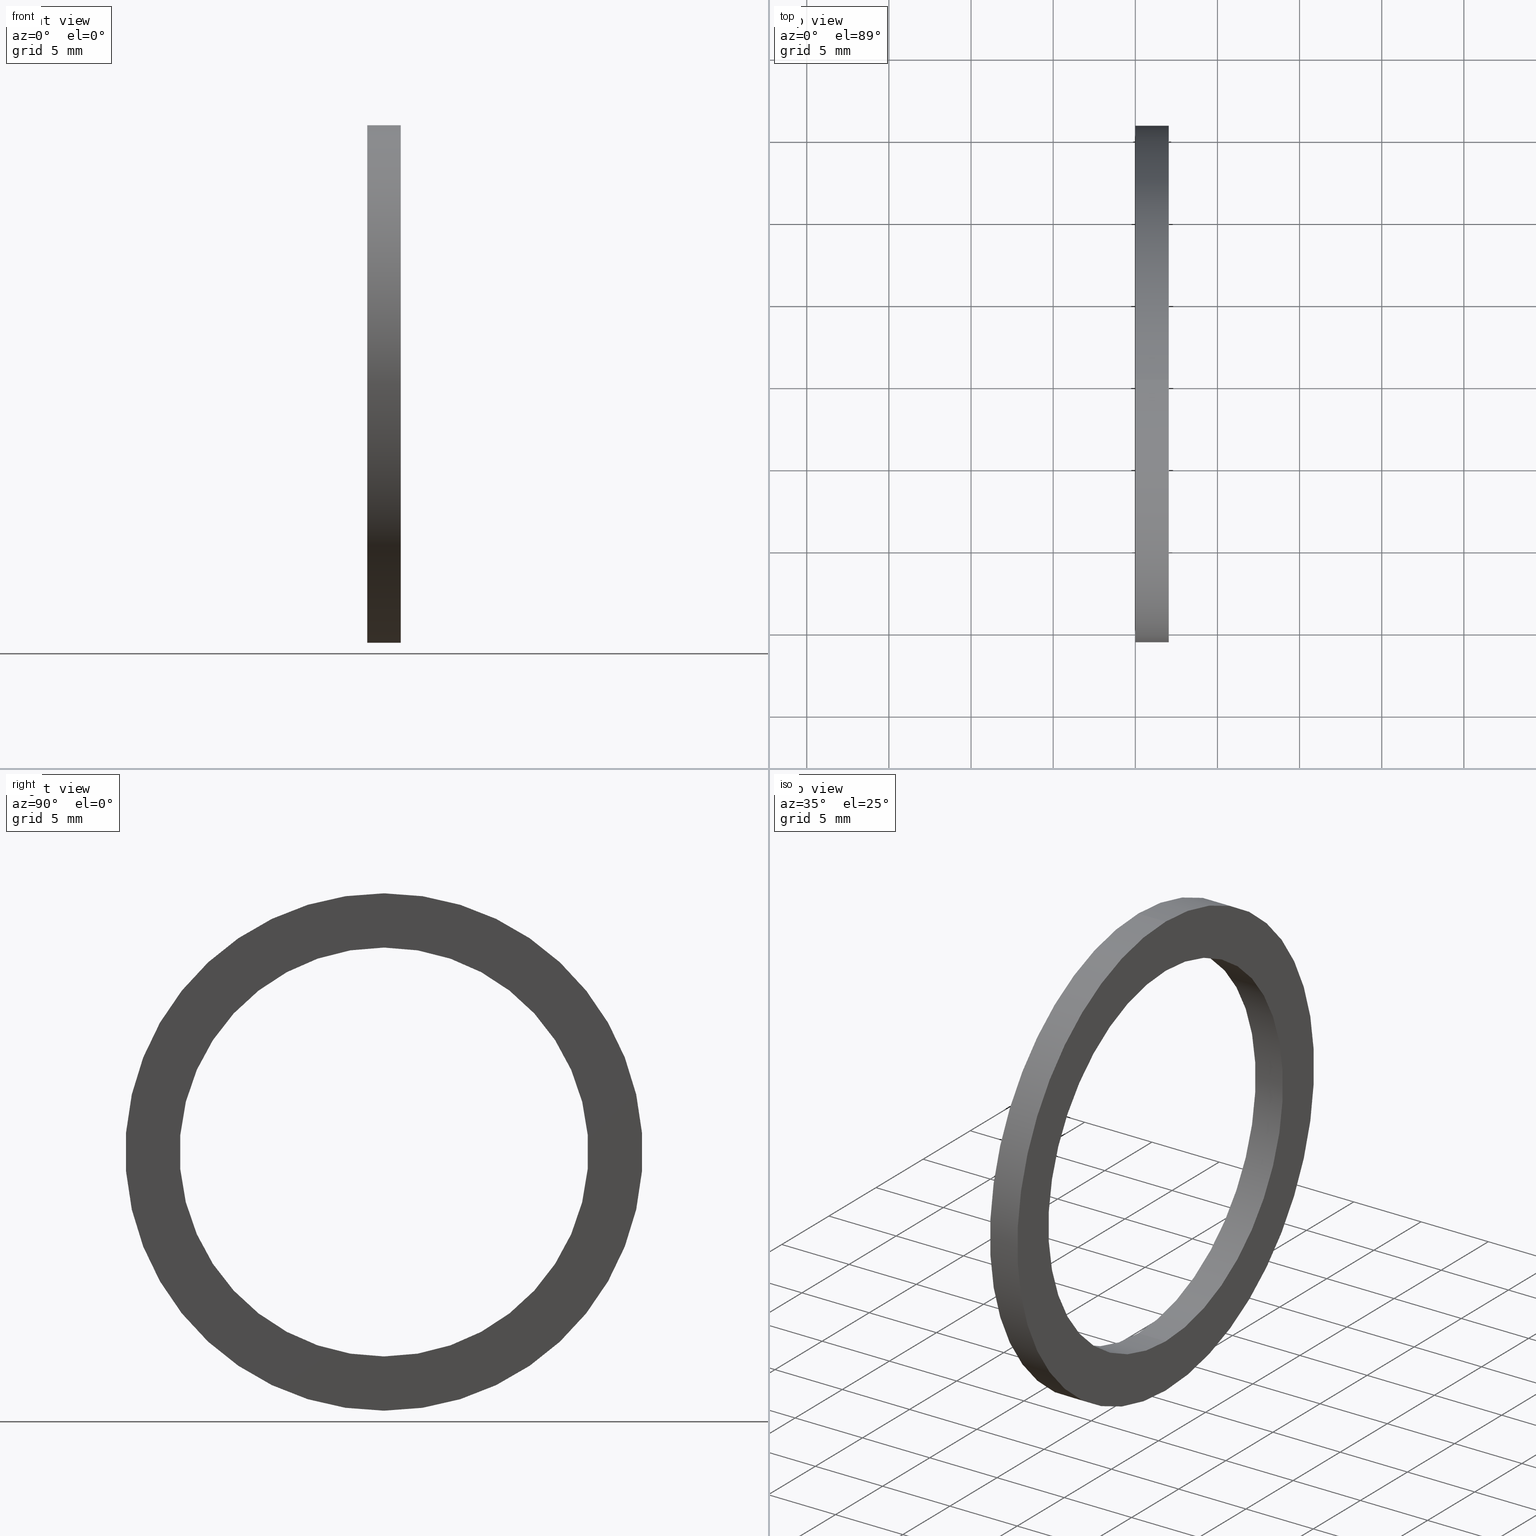
[diagram: canonical four-view strip — front | top / right | iso, engineering-drawing reading convention]
A machine part, canonical four-view strip (front | top / right | iso — engineering-drawing reading convention). The complete STEP part file that produces these views, byte-faithful:
ISO-10303-21;
HEADER;
FILE_DESCRIPTION (( 'STEP AP203' ),
    '1' );
FILE_NAME ('MS-25-NY.STEP',
    '2008-03-29T07:50:07',
    ( '' ),
    ( '' ),
    'SwSTEP 2.0',
    'SolidWorks 2007',
    '' );
FILE_SCHEMA (( 'CONFIG_CONTROL_DESIGN' ));
ENDSEC;

DATA;
#1 = ORIENTED_EDGE ( 'NONE', *, *, #12, .T. ) ;
#2 = VERTEX_POINT ( 'NONE', #59 ) ;
#3 = EDGE_CURVE ( 'NONE', #4, #2, #68, .T. ) ;
#4 = VERTEX_POINT ( 'NONE', #65 ) ;
#5 = EDGE_LOOP ( 'NONE', ( #7, #1, #14, #18 ) ) ;
#6 = ADVANCED_FACE ( 'NONE', ( #76 ), #69, .T. ) ;
#7 = ORIENTED_EDGE ( 'NONE', *, *, #3, .T. ) ;
#8 = VERTEX_POINT ( 'NONE', #84 ) ;
#9 = ORIENTED_EDGE ( 'NONE', *, *, #10, .F. ) ;
#10 = EDGE_CURVE ( 'NONE', #53, #8, #83, .T. ) ;
#11 = EDGE_LOOP ( 'NONE', ( #46, #48 ) ) ;
#12 = EDGE_CURVE ( 'NONE', #2, #13, #87, .T. ) ;
#13 = VERTEX_POINT ( 'NONE', #94 ) ;
#14 = ORIENTED_EDGE ( 'NONE', *, *, #15, .F. ) ;
#15 = EDGE_CURVE ( 'NONE', #16, #13, #91, .T. ) ;
#16 = VERTEX_POINT ( 'NONE', #88 ) ;
#17 = ORIENTED_EDGE ( 'NONE', *, *, #43, .F. ) ;
#18 = ORIENTED_EDGE ( 'NONE', *, *, #19, .F. ) ;
#19 = EDGE_CURVE ( 'NONE', #4, #16, #98, .T. ) ;
#20 = ADVANCED_FACE ( 'NONE', ( #101, #100 ), #99, .T. ) ;
#21 = EDGE_LOOP ( 'NONE', ( #22, #23 ) ) ;
#22 = ORIENTED_EDGE ( 'NONE', *, *, #15, .T. ) ;
#23 = ORIENTED_EDGE ( 'NONE', *, *, #26, .T. ) ;
#24 = ORIENTED_EDGE ( 'NONE', *, *, #10, .T. ) ;
#25 = CLOSED_SHELL ( 'NONE', ( #61, #6, #20, #49, #35, #34 ) ) ;
#26 = EDGE_CURVE ( 'NONE', #13, #16, #132, .T. ) ;
#27 = ORIENTED_EDGE ( 'NONE', *, *, #47, .T. ) ;
#28 = EDGE_LOOP ( 'NONE', ( #29, #17, #24, #27 ) ) ;
#29 = ORIENTED_EDGE ( 'NONE', *, *, #36, .F. ) ;
#30 = ORIENTED_EDGE ( 'NONE', *, *, #26, .F. ) ;
#31 = EDGE_CURVE ( 'NONE', #38, #8, #128, .T. ) ;
#32 = EDGE_LOOP ( 'NONE', ( #41, #42 ) ) ;
#33 = ORIENTED_EDGE ( 'NONE', *, *, #12, .F. ) ;
#34 = ADVANCED_FACE ( 'NONE', ( #124 ), #123, .F. ) ;
#35 = ADVANCED_FACE ( 'NONE', ( #122, #117 ), #116, .T. ) ;
#36 = EDGE_CURVE ( 'NONE', #62, #38, #111, .T. ) ;
#37 = ORIENTED_EDGE ( 'NONE', *, *, #36, .T. ) ;
#38 = VERTEX_POINT ( 'NONE', #107 ) ;
#39 = EDGE_CURVE ( 'NONE', #2, #4, #106, .T. ) ;
#40 = EDGE_LOOP ( 'NONE', ( #33, #52, #45, #30 ) ) ;
#41 = ORIENTED_EDGE ( 'NONE', *, *, #3, .F. ) ;
#42 = ORIENTED_EDGE ( 'NONE', *, *, #39, .F. ) ;
#43 = EDGE_CURVE ( 'NONE', #53, #62, #71, .T. ) ;
#44 = ORIENTED_EDGE ( 'NONE', *, *, #57, .T. ) ;
#45 = ORIENTED_EDGE ( 'NONE', *, *, #19, .T. ) ;
#46 = ORIENTED_EDGE ( 'NONE', *, *, #47, .F. ) ;
#47 = EDGE_CURVE ( 'NONE', #8, #38, #149, .T. ) ;
#48 = ORIENTED_EDGE ( 'NONE', *, *, #31, .F. ) ;
#49 = ADVANCED_FACE ( 'NONE', ( #165 ), #145, .T. ) ;
#50 = EDGE_LOOP ( 'NONE', ( #51, #44 ) ) ;
#51 = ORIENTED_EDGE ( 'NONE', *, *, #43, .T. ) ;
#52 = ORIENTED_EDGE ( 'NONE', *, *, #39, .T. ) ;
#53 = VERTEX_POINT ( 'NONE', #146 ) ;
#54 = ORIENTED_EDGE ( 'NONE', *, *, #31, .T. ) ;
#55 = EDGE_LOOP ( 'NONE', ( #63, #37, #54, #9 ) ) ;
#56 = CARTESIAN_POINT ( 'NONE',  ( 0.07999999999999996000, 0.0000000000000000000, 0.0000000000000000000 ) ) ;
#57 = EDGE_CURVE ( 'NONE', #62, #53, #177, .T. ) ;
#58 = DIRECTION ( 'NONE',  ( -1.000000000000000000, 0.0000000000000000000, 0.0000000000000000000 ) ) ;
#59 = CARTESIAN_POINT ( 'NONE',  ( 0.07999999999999996000, 7.592810154713589100E-017, -0.6200000000000000000 ) ) ;
#60 = MANIFOLD_SOLID_BREP ( 'NONE', #25 ) ;
#61 = ADVANCED_FACE ( 'NONE', ( #178 ), #170, .F. ) ;
#62 = VERTEX_POINT ( 'NONE', #171 ) ;
#63 = ORIENTED_EDGE ( 'NONE', *, *, #57, .F. ) ;
#64 = DIRECTION ( 'NONE',  ( 0.0000000000000000000, 0.0000000000000000000, 1.000000000000000000 ) ) ;
#65 = CARTESIAN_POINT ( 'NONE',  ( 0.07999999999999996000, 0.0000000000000000000, 0.6200000000000000000 ) ) ;
#66 = DIRECTION ( 'NONE',  ( -1.000000000000000000, 0.0000000000000000000, 0.0000000000000000000 ) ) ;
#67 = CARTESIAN_POINT ( 'NONE',  ( -1.721125226614714300, 0.0000000000000000000, 0.0000000000000000000 ) ) ;
#68 = CIRCLE ( 'NONE', #77, 0.6200000000000000000 ) ;
#69 = CYLINDRICAL_SURFACE ( 'NONE', #74, 0.6200000000000000000 ) ;
#70 = AXIS2_PLACEMENT_3D ( 'NONE', #56, #78, #79 ) ;
#71 = CIRCLE ( 'NONE', #70, 0.4899999999999999900 ) ;
#72 = DIRECTION ( 'NONE',  ( 0.0000000000000000000, 0.0000000000000000000, 1.000000000000000000 ) ) ;
#73 = DIRECTION ( 'NONE',  ( -1.000000000000000000, 0.0000000000000000000, 0.0000000000000000000 ) ) ;
#74 = AXIS2_PLACEMENT_3D ( 'NONE', #67, #73, #72 ) ;
#75 = CARTESIAN_POINT ( 'NONE',  ( 0.07999999999999996000, 0.0000000000000000000, 0.0000000000000000000 ) ) ;
#76 = FACE_OUTER_BOUND ( 'NONE', #5, .T. ) ;
#77 = AXIS2_PLACEMENT_3D ( 'NONE', #75, #66, #64 ) ;
#78 = DIRECTION ( 'NONE',  ( -1.000000000000000000, 0.0000000000000000000, 0.0000000000000000000 ) ) ;
#79 = DIRECTION ( 'NONE',  ( 0.0000000000000000000, 0.0000000000000000000, 1.000000000000000000 ) ) ;
#80 = DIRECTION ( 'NONE',  ( -1.000000000000000000, 0.0000000000000000000, 0.0000000000000000000 ) ) ;
#81 = VECTOR ( 'NONE', #80, 39.37007874015748100 ) ;
#82 = CARTESIAN_POINT ( 'NONE',  ( -1.721125226614714300, 0.0000000000000000000, 0.4899999999999999900 ) ) ;
#83 = LINE ( 'NONE', #82, #81 ) ;
#84 = CARTESIAN_POINT ( 'NONE',  ( 0.0000000000000000000, 0.0000000000000000000, 0.4899999999999999900 ) ) ;
#85 = VECTOR ( 'NONE', #58, 39.37007874015748100 ) ;
#86 = CARTESIAN_POINT ( 'NONE',  ( -1.721125226614714300, 7.592810154713589100E-017, -0.6200000000000000000 ) ) ;
#87 = LINE ( 'NONE', #86, #85 ) ;
#88 = CARTESIAN_POINT ( 'NONE',  ( 0.0000000000000000000, 0.0000000000000000000, 0.6200000000000000000 ) ) ;
#89 = CARTESIAN_POINT ( 'NONE',  ( 0.0000000000000000000, 0.0000000000000000000, 0.0000000000000000000 ) ) ;
#90 = AXIS2_PLACEMENT_3D ( 'NONE', #89, #93, #92 ) ;
#91 = CIRCLE ( 'NONE', #90, 0.6200000000000000000 ) ;
#92 = DIRECTION ( 'NONE',  ( 0.0000000000000000000, 0.0000000000000000000, 1.000000000000000000 ) ) ;
#93 = DIRECTION ( 'NONE',  ( -1.000000000000000000, 0.0000000000000000000, 0.0000000000000000000 ) ) ;
#94 = CARTESIAN_POINT ( 'NONE',  ( 0.0000000000000000000, 7.592810154713589100E-017, -0.6200000000000000000 ) ) ;
#95 = DIRECTION ( 'NONE',  ( -1.000000000000000000, 0.0000000000000000000, 0.0000000000000000000 ) ) ;
#96 = VECTOR ( 'NONE', #95, 39.37007874015748100 ) ;
#97 = CARTESIAN_POINT ( 'NONE',  ( -1.721125226614714300, 0.0000000000000000000, 0.6200000000000000000 ) ) ;
#98 = LINE ( 'NONE', #97, #96 ) ;
#99 = PLANE ( 'NONE',  #137 ) ;
#100 = FACE_BOUND ( 'NONE', #11, .T. ) ;
#101 = FACE_OUTER_BOUND ( 'NONE', #21, .T. ) ;
#102 = DIRECTION ( 'NONE',  ( 0.0000000000000000000, 0.0000000000000000000, 1.000000000000000000 ) ) ;
#103 = DIRECTION ( 'NONE',  ( -1.000000000000000000, 0.0000000000000000000, 0.0000000000000000000 ) ) ;
#104 = CARTESIAN_POINT ( 'NONE',  ( 0.07999999999999996000, 0.0000000000000000000, 0.0000000000000000000 ) ) ;
#105 = AXIS2_PLACEMENT_3D ( 'NONE', #104, #103, #102 ) ;
#106 = CIRCLE ( 'NONE', #105, 0.6200000000000000000 ) ;
#107 = CARTESIAN_POINT ( 'NONE',  ( 0.0000000000000000000, 6.000769315822029800E-017, -0.4899999999999999900 ) ) ;
#108 = DIRECTION ( 'NONE',  ( -1.000000000000000000, 0.0000000000000000000, 0.0000000000000000000 ) ) ;
#109 = VECTOR ( 'NONE', #108, 39.37007874015748100 ) ;
#110 = CARTESIAN_POINT ( 'NONE',  ( -1.721125226614714300, 6.000769315822029800E-017, -0.4899999999999999900 ) ) ;
#111 = LINE ( 'NONE', #110, #109 ) ;
#112 = DIRECTION ( 'NONE',  ( 0.0000000000000000000, 0.0000000000000000000, -1.000000000000000000 ) ) ;
#113 = DIRECTION ( 'NONE',  ( 1.000000000000000000, 0.0000000000000000000, 0.0000000000000000000 ) ) ;
#114 = CARTESIAN_POINT ( 'NONE',  ( 0.08000000000000002900, -0.4899999999999999900, 0.0000000000000000000 ) ) ;
#115 = AXIS2_PLACEMENT_3D ( 'NONE', #114, #113, #112 ) ;
#116 = PLANE ( 'NONE',  #115 ) ;
#117 = FACE_OUTER_BOUND ( 'NONE', #32, .T. ) ;
#118 = DIRECTION ( 'NONE',  ( 0.0000000000000000000, 0.0000000000000000000, 1.000000000000000000 ) ) ;
#119 = DIRECTION ( 'NONE',  ( -1.000000000000000000, 0.0000000000000000000, 0.0000000000000000000 ) ) ;
#120 = CARTESIAN_POINT ( 'NONE',  ( -1.721125226614714300, 0.0000000000000000000, 0.0000000000000000000 ) ) ;
#121 = AXIS2_PLACEMENT_3D ( 'NONE', #120, #119, #118 ) ;
#122 = FACE_BOUND ( 'NONE', #50, .T. ) ;
#123 = CYLINDRICAL_SURFACE ( 'NONE', #121, 0.4899999999999999900 ) ;
#124 = FACE_OUTER_BOUND ( 'NONE', #28, .T. ) ;
#125 = DIRECTION ( 'NONE',  ( 0.0000000000000000000, 0.0000000000000000000, 1.000000000000000000 ) ) ;
#126 = DIRECTION ( 'NONE',  ( -1.000000000000000000, 0.0000000000000000000, 0.0000000000000000000 ) ) ;
#127 = AXIS2_PLACEMENT_3D ( 'NONE', #133, #126, #125 ) ;
#128 = CIRCLE ( 'NONE', #127, 0.4899999999999999900 ) ;
#129 = DIRECTION ( 'NONE',  ( 0.0000000000000000000, 0.0000000000000000000, 1.000000000000000000 ) ) ;
#130 = DIRECTION ( 'NONE',  ( -1.000000000000000000, 0.0000000000000000000, 0.0000000000000000000 ) ) ;
#131 = AXIS2_PLACEMENT_3D ( 'NONE', #138, #130, #129 ) ;
#132 = CIRCLE ( 'NONE', #131, 0.6200000000000000000 ) ;
#133 = CARTESIAN_POINT ( 'NONE',  ( 0.0000000000000000000, 0.0000000000000000000, 0.0000000000000000000 ) ) ;
#134 = DIRECTION ( 'NONE',  ( 0.0000000000000000000, 0.0000000000000000000, 1.000000000000000000 ) ) ;
#135 = DIRECTION ( 'NONE',  ( -1.000000000000000000, 0.0000000000000000000, 0.0000000000000000000 ) ) ;
#136 = CARTESIAN_POINT ( 'NONE',  ( 1.959370166115802700E-017, -0.4899999999999999900, 0.0000000000000000000 ) ) ;
#137 = AXIS2_PLACEMENT_3D ( 'NONE', #136, #135, #134 ) ;
#138 = CARTESIAN_POINT ( 'NONE',  ( 0.0000000000000000000, 0.0000000000000000000, 0.0000000000000000000 ) ) ;
#139 = PERSON ( 'UNSPECIFIED', 'UNSPECIFIED', 'UNSPECIFIED', ('UNSPECIFIED'), ('UNSPECIFIED'), ('UNSPECIFIED') ) ;
#140 = PRODUCT ( 'MS-25-NY', 'MS-25-NY', '', ( #141 ) ) ;
#141 = MECHANICAL_CONTEXT ( 'NONE', #143, 'mechanical' ) ;
#142 = APPLICATION_PROTOCOL_DEFINITION ( 'international standard', 'config_control_design', 1994, #143 ) ;
#143 = APPLICATION_CONTEXT ( 'configuration controlled 3d designs of mechanical parts and assemblies' ) ;
#144 = AXIS2_PLACEMENT_3D ( 'NONE', #166, #180, #179 ) ;
#145 = CYLINDRICAL_SURFACE ( 'NONE', #144, 0.6200000000000000000 ) ;
#146 = CARTESIAN_POINT ( 'NONE',  ( 0.07999999999999996000, 0.0000000000000000000, 0.4899999999999999900 ) ) ;
#147 = CARTESIAN_POINT ( 'NONE',  ( 0.0000000000000000000, 0.0000000000000000000, 0.0000000000000000000 ) ) ;
#148 = AXIS2_PLACEMENT_3D ( 'NONE', #147, #168, #167 ) ;
#149 = CIRCLE ( 'NONE', #148, 0.4899999999999999900 ) ;
#150 = DIRECTION ( 'NONE',  ( 1.000000000000000000, 0.0000000000000000000, 0.0000000000000000000 ) ) ;
#151 = CARTESIAN_POINT ( 'NONE',  ( 0.0000000000000000000, 0.0000000000000000000, 0.0000000000000000000 ) ) ;
#152 = AXIS2_PLACEMENT_3D ( 'NONE', #151, #162, #150 ) ;
#153 = ADVANCED_BREP_SHAPE_REPRESENTATION ( 'MS-25-NY', ( #60, #152 ), #154 ) ;
#154 =( GEOMETRIC_REPRESENTATION_CONTEXT ( 3 ) GLOBAL_UNCERTAINTY_ASSIGNED_CONTEXT ( ( #155 ) ) GLOBAL_UNIT_ASSIGNED_CONTEXT ( ( #158, #157, #156 ) ) REPRESENTATION_CONTEXT ( 'NONE', 'WORKASPACE' ) );
#155 = UNCERTAINTY_MEASURE_WITH_UNIT (LENGTH_MEASURE( 1.000000000000000100E-005 ), #158, 'distance_accuracy_value', 'NONE');
#156 =( NAMED_UNIT ( * ) SI_UNIT ( $, .STERADIAN. ) SOLID_ANGLE_UNIT ( ) );
#157 =( NAMED_UNIT ( * ) PLANE_ANGLE_UNIT ( ) SI_UNIT ( $, .RADIAN. ) );
#158 =( CONVERSION_BASED_UNIT ( 'INCH', #159 ) LENGTH_UNIT ( ) NAMED_UNIT ( #160 ) );
#159 = LENGTH_MEASURE_WITH_UNIT ( LENGTH_MEASURE( 0.02539999999999999900 ), #161 );
#160 = DIMENSIONAL_EXPONENTS ( 1.000000000000000000, 0.0000000000000000000, 0.0000000000000000000, 0.0000000000000000000, 0.0000000000000000000, 0.0000000000000000000, 0.0000000000000000000 ) ;
#161 =( LENGTH_UNIT ( ) NAMED_UNIT ( * ) SI_UNIT ( $, .METRE. ) );
#162 = DIRECTION ( 'NONE',  ( 0.0000000000000000000, 0.0000000000000000000, 1.000000000000000000 ) ) ;
#163 = DIRECTION ( 'NONE',  ( 0.0000000000000000000, 0.0000000000000000000, 1.000000000000000000 ) ) ;
#164 = DIRECTION ( 'NONE',  ( -1.000000000000000000, 0.0000000000000000000, 0.0000000000000000000 ) ) ;
#165 = FACE_OUTER_BOUND ( 'NONE', #40, .T. ) ;
#166 = CARTESIAN_POINT ( 'NONE',  ( -1.721125226614714300, 0.0000000000000000000, 0.0000000000000000000 ) ) ;
#167 = DIRECTION ( 'NONE',  ( 0.0000000000000000000, 0.0000000000000000000, 1.000000000000000000 ) ) ;
#168 = DIRECTION ( 'NONE',  ( -1.000000000000000000, 0.0000000000000000000, 0.0000000000000000000 ) ) ;
#169 = AXIS2_PLACEMENT_3D ( 'NONE', #172, #164, #163 ) ;
#170 = CYLINDRICAL_SURFACE ( 'NONE', #169, 0.4899999999999999900 ) ;
#171 = CARTESIAN_POINT ( 'NONE',  ( 0.07999999999999996000, 6.000769315822029800E-017, -0.4899999999999999900 ) ) ;
#172 = CARTESIAN_POINT ( 'NONE',  ( -1.721125226614714300, 0.0000000000000000000, 0.0000000000000000000 ) ) ;
#173 = DIRECTION ( 'NONE',  ( 0.0000000000000000000, 0.0000000000000000000, 1.000000000000000000 ) ) ;
#174 = DIRECTION ( 'NONE',  ( -1.000000000000000000, 0.0000000000000000000, 0.0000000000000000000 ) ) ;
#175 = CARTESIAN_POINT ( 'NONE',  ( 0.07999999999999996000, 0.0000000000000000000, 0.0000000000000000000 ) ) ;
#176 = AXIS2_PLACEMENT_3D ( 'NONE', #175, #174, #173 ) ;
#177 = CIRCLE ( 'NONE', #176, 0.4899999999999999900 ) ;
#178 = FACE_OUTER_BOUND ( 'NONE', #55, .T. ) ;
#179 = DIRECTION ( 'NONE',  ( 0.0000000000000000000, 0.0000000000000000000, 1.000000000000000000 ) ) ;
#180 = DIRECTION ( 'NONE',  ( -1.000000000000000000, 0.0000000000000000000, 0.0000000000000000000 ) ) ;
#181 = CC_DESIGN_SECURITY_CLASSIFICATION ( #240, ( #193 ) ) ;
#182 = CC_DESIGN_APPROVAL ( #246, ( #240 ) ) ;
#183 = APPROVAL_DATE_TIME ( #184, #246 ) ;
#184 = DATE_AND_TIME ( #185, #186 ) ;
#185 = CALENDAR_DATE ( 2008, 29, 3 ) ;
#186 = LOCAL_TIME ( 13, 20, 7.000000000000000000, #187 ) ;
#187 = COORDINATED_UNIVERSAL_TIME_OFFSET ( 5, 30, .AHEAD. ) ;
#188 = APPROVAL_PERSON_ORGANIZATION ( #248, #246, #189 ) ;
#189 = APPROVAL_ROLE ( '' ) ;
#190 = PERSON_AND_ORGANIZATION_ROLE ( 'design_owner' ) ;
#191 = APPROVAL_STATUS ( 'not_yet_approved' ) ;
#192 = PERSON_AND_ORGANIZATION ( #139, #196 ) ;
#193 = PRODUCT_DEFINITION_FORMATION_WITH_SPECIFIED_SOURCE ( 'ANY', '', #140, .NOT_KNOWN. ) ;
#194 = CC_DESIGN_DATE_AND_TIME_ASSIGNMENT ( #215, #214, ( #212 ) ) ;
#195 = PERSON_AND_ORGANIZATION ( #139, #196 ) ;
#196 = ORGANIZATION ( 'UNSPECIFIED', 'UNSPECIFIED', '' ) ;
#197 = APPLICATION_PROTOCOL_DEFINITION ( 'international standard', 'config_control_design', 1994, #198 ) ;
#198 = APPLICATION_CONTEXT ( 'configuration controlled 3d designs of mechanical parts and assemblies' ) ;
#199 = DATE_AND_TIME ( #230, #231 ) ;
#200 = COORDINATED_UNIVERSAL_TIME_OFFSET ( 5, 30, .AHEAD. ) ;
#201 = APPROVAL_PERSON_ORGANIZATION ( #211, #203, #202 ) ;
#202 = APPROVAL_ROLE ( '' ) ;
#203 = APPROVAL ( #204, 'UNSPECIFIED' ) ;
#204 = APPROVAL_STATUS ( 'not_yet_approved' ) ;
#205 = SHAPE_DEFINITION_REPRESENTATION ( #206, #153 ) ;
#206 = PRODUCT_DEFINITION_SHAPE ( 'NONE', 'NONE',  #212 ) ;
#207 = PRODUCT_RELATED_PRODUCT_CATEGORY ( 'detail', '', ( #140 ) ) ;
#208 = COORDINATED_UNIVERSAL_TIME_OFFSET ( 5, 30, .AHEAD. ) ;
#209 = CC_DESIGN_PERSON_AND_ORGANIZATION_ASSIGNMENT ( #227, #210, ( #212 ) ) ;
#210 = PERSON_AND_ORGANIZATION_ROLE ( 'creator' ) ;
#211 = PERSON_AND_ORGANIZATION ( #139, #196 ) ;
#212 = PRODUCT_DEFINITION ( 'UNKNOWN', '', #193, #213 ) ;
#213 = DESIGN_CONTEXT ( 'detailed design', #198, 'design' ) ;
#214 = DATE_TIME_ROLE ( 'creation_date' ) ;
#215 = DATE_AND_TIME ( #216, #217 ) ;
#216 = CALENDAR_DATE ( 2008, 29, 3 ) ;
#217 = LOCAL_TIME ( 13, 20, 7.000000000000000000, #208 ) ;
#218 = APPROVAL_DATE_TIME ( #219, #225 ) ;
#219 = DATE_AND_TIME ( #220, #221 ) ;
#220 = CALENDAR_DATE ( 2008, 29, 3 ) ;
#221 = LOCAL_TIME ( 13, 20, 7.000000000000000000, #222 ) ;
#222 = COORDINATED_UNIVERSAL_TIME_OFFSET ( 5, 30, .AHEAD. ) ;
#223 = APPROVAL_PERSON_ORGANIZATION ( #192, #225, #224 ) ;
#224 = APPROVAL_ROLE ( '' ) ;
#225 = APPROVAL ( #191, 'UNSPECIFIED' ) ;
#226 = CC_DESIGN_PERSON_AND_ORGANIZATION_ASSIGNMENT ( #195, #190, ( #140 ) ) ;
#227 = PERSON_AND_ORGANIZATION ( #139, #196 ) ;
#228 = CC_DESIGN_APPROVAL ( #203, ( #212 ) ) ;
#229 = APPROVAL_DATE_TIME ( #199, #203 ) ;
#230 = CALENDAR_DATE ( 2008, 29, 3 ) ;
#231 = LOCAL_TIME ( 13, 20, 7.000000000000000000, #200 ) ;
#232 = CC_DESIGN_PERSON_AND_ORGANIZATION_ASSIGNMENT ( #234, #233, ( #193 ) ) ;
#233 = PERSON_AND_ORGANIZATION_ROLE ( 'design_supplier' ) ;
#234 = PERSON_AND_ORGANIZATION ( #139, #196 ) ;
#235 = LOCAL_TIME ( 13, 20, 7.000000000000000000, #236 ) ;
#236 = COORDINATED_UNIVERSAL_TIME_OFFSET ( 5, 30, .AHEAD. ) ;
#237 = CC_DESIGN_PERSON_AND_ORGANIZATION_ASSIGNMENT ( #239, #238, ( #240 ) ) ;
#238 = PERSON_AND_ORGANIZATION_ROLE ( 'classification_officer' ) ;
#239 = PERSON_AND_ORGANIZATION ( #139, #196 ) ;
#240 = SECURITY_CLASSIFICATION ( '', '', #241 ) ;
#241 = SECURITY_CLASSIFICATION_LEVEL ( 'unclassified' ) ;
#242 = CC_DESIGN_PERSON_AND_ORGANIZATION_ASSIGNMENT ( #244, #243, ( #193 ) ) ;
#243 = PERSON_AND_ORGANIZATION_ROLE ( 'creator' ) ;
#244 = PERSON_AND_ORGANIZATION ( #139, #196 ) ;
#245 = CC_DESIGN_APPROVAL ( #225, ( #193 ) ) ;
#246 = APPROVAL ( #247, 'UNSPECIFIED' ) ;
#247 = APPROVAL_STATUS ( 'not_yet_approved' ) ;
#248 = PERSON_AND_ORGANIZATION ( #139, #196 ) ;
#249 = CC_DESIGN_DATE_AND_TIME_ASSIGNMENT ( #251, #250, ( #240 ) ) ;
#250 = DATE_TIME_ROLE ( 'classification_date' ) ;
#251 = DATE_AND_TIME ( #252, #235 ) ;
#252 = CALENDAR_DATE ( 2008, 29, 3 ) ;
ENDSEC;
END-ISO-10303-21;
